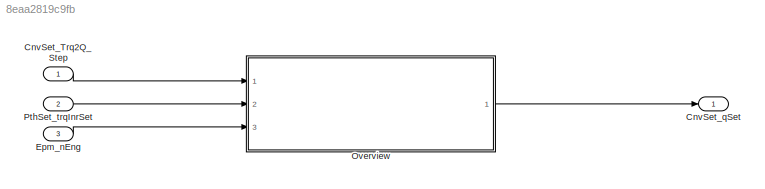
MODEL slx_8eaa2819c9fb
KIND model
CONFIG AbsTol = auto
CONFIG EnableMultiTasking = off
CONFIG FixedStep = 0.001
CONFIG MaxStep = auto
CONFIG MinStep = auto
CONFIG RelTol = 1e-3
CONFIG SampleTimeConstraint = Unconstrained
CONFIG Solver = FixedStepDiscrete
CONFIG SolverName = FixedStepDiscrete
CONFIG StartTime = 0.0
CONFIG StopTime = Inf
BLOCK [Inport] CnvSet_Trq2Q_Step
  IconDisplay = Port number
  OutputFunctionCall = on
BLOCK [Outport] CnvSet_qSet
  Description = Set point injection quantity
  IconDisplay = Port number
  OutDataTypeStr = InjMass
  OutMax = 319
  OutMin = -319
  PortDimensions = [1 1]
  Unit = mg/hub
BLOCK [Inport] Epm_nEng
  Description = Engine speed
  IconDisplay = Port number
  OutDataTypeStr = ERPM
  OutMax = 6000
  OutMin = 0
  Port = 3
  PortDimensions = [1 1]
  Unit = rpm
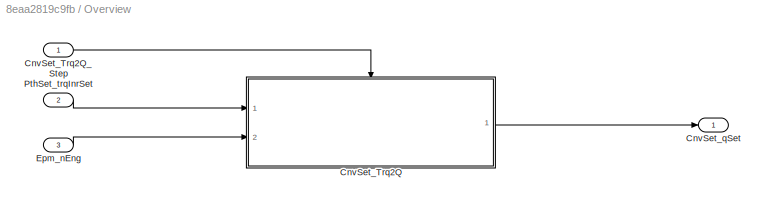
BLOCK [SubSystem] Overview
  Ports = [3, 1]
  RequestExecContextInheritance = off
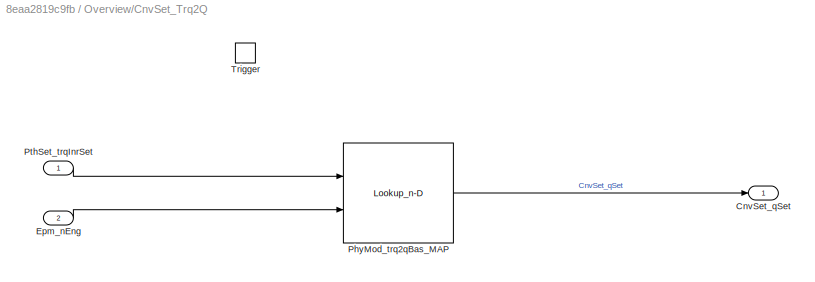
BLOCK [SubSystem] Overview/CnvSet_Trq2Q
  Ports = [2, 1, 0, 1]
  RequestExecContextInheritance = off
BLOCK [Outport] Overview/CnvSet_Trq2Q/CnvSet_qSet
  IconDisplay = Port number
  Tag = mg/hub
BLOCK [Inport] Overview/CnvSet_Trq2Q/Epm_nEng
  IconDisplay = Port number
  Port = 2
  Tag = rpm
BLOCK [Lookup_n-D] Overview/CnvSet_Trq2Q/PhyMod_trq2qBas_MAP
  BreakpointsForDimension1 = PhyMod_trq2qBas_MAPY
  BreakpointsForDimension1DataTypeStr = Inherit: Inherit from 'Breakpoint data'
  BreakpointsForDimension2 = PhyMod_trq2qBas_MAPX
  BreakpointsForDimension2DataTypeStr = Inherit: Inherit from 'Breakpoint data'
  ExtrapMethod = Clip
  InputSameDT = off
  InternalRulePriority = Speed
  OutDataTypeStr = Inherit: Inherit from 'Table data'
  Ports = [2, 1]
  RndMeth = Simplest
  Table = PhyMod_trq2qBas_MAP
  TableDataTypeStr = Inherit: Inherit from 'Table data'
BLOCK [Inport] Overview/CnvSet_Trq2Q/PthSet_trqInrSet
  IconDisplay = Port number
  Tag = Nm
BLOCK [TriggerPort] Overview/CnvSet_Trq2Q/Trigger
  PortDimensions = 1
  Ports = []
  StatesWhenEnabling = held
  TriggerType = function-call
  VariantControl = Variant
BLOCK [Inport] Overview/CnvSet_Trq2Q_Step
  IconDisplay = Port number
BLOCK [Outport] Overview/CnvSet_qSet
  IconDisplay = Port number
BLOCK [Inport] Overview/Epm_nEng
  IconDisplay = Port number
  Port = 3
BLOCK [Inport] Overview/PthSet_trqInrSet
  IconDisplay = Port number
  Port = 2
BLOCK [Inport] PthSet_trqInrSet
  Description = Inner torque set value after monitoring limitation
  IconDisplay = Port number
  OutDataTypeStr = Torq
  OutMax = 3276.7
  OutMin = -3000
  Port = 2
  PortDimensions = [1 1]
  Unit = Nm
LINE CnvSet_Trq2Q_Step:1 -> Overview:1
LINE Epm_nEng:1 -> Overview:3
LINE Overview/CnvSet_Trq2Q/Epm_nEng:1 -> Overview/CnvSet_Trq2Q/PhyMod_trq2qBas_MAP:2
LINE Overview/CnvSet_Trq2Q/PhyMod_trq2qBas_MAP:1 -> Overview/CnvSet_Trq2Q/CnvSet_qSet:1
LINE Overview/CnvSet_Trq2Q/PthSet_trqInrSet:1 -> Overview/CnvSet_Trq2Q/PhyMod_trq2qBas_MAP:1
LINE Overview/CnvSet_Trq2Q:1 -> Overview/CnvSet_qSet:1
LINE Overview/CnvSet_Trq2Q_Step:1 -> Overview/CnvSet_Trq2Q:trigger
LINE Overview/Epm_nEng:1 -> Overview/CnvSet_Trq2Q:2
LINE Overview/PthSet_trqInrSet:1 -> Overview/CnvSet_Trq2Q:1
LINE Overview:1 -> CnvSet_qSet:1
LINE PthSet_trqInrSet:1 -> Overview:2
